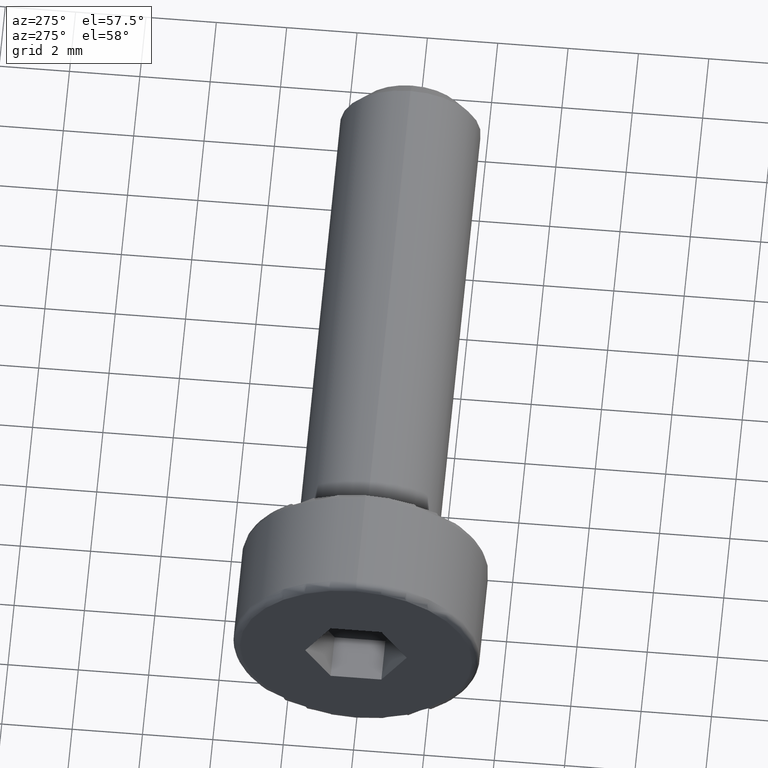
[diagram: clean part render]
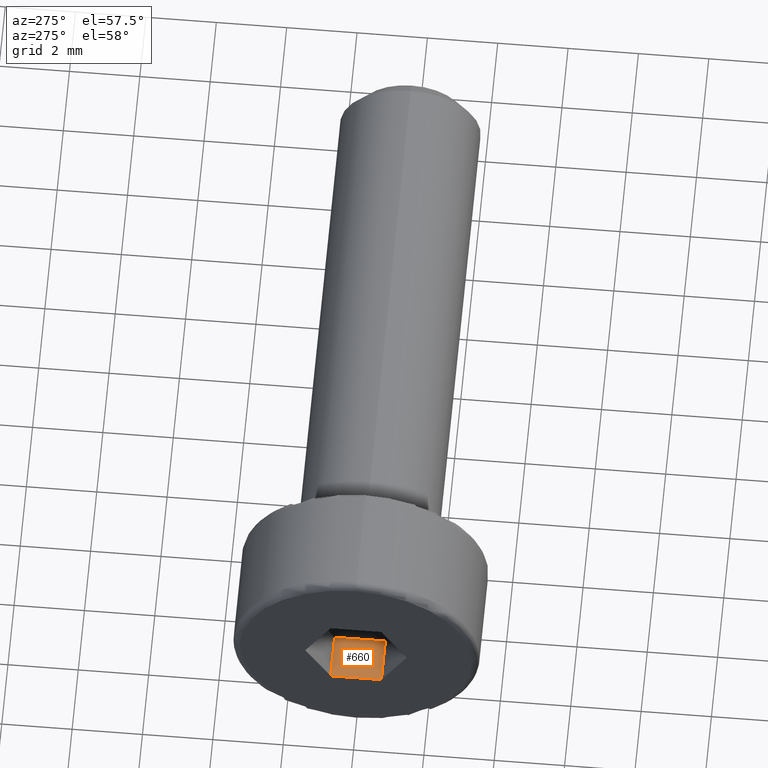
[diagram: same view with one face highlighted and labeled with its STEP entity id]
A machine part, auxiliary view. The second image highlights one B-rep face of the part: STEP entity #660.
In plain terms, the highlighted planar face has unit normal (0, -0, -1).
Its self-contained STEP definition (entity closure, byte-faithful):
#15 = EDGE_LOOP ( 'NONE', ( #218, #257, #430, #52 ) ) ;
#47 = CARTESIAN_POINT ( 'NONE',  ( -1.900000000000000100, -0.7216878364870932300, -1.250000000000020900 ) ) ;
#52 = ORIENTED_EDGE ( 'NONE', *, *, #684, .T. ) ;
#158 = LINE ( 'NONE', #47, #631 ) ;
#194 = LINE ( 'NONE', #270, #504 ) ;
#205 = AXIS2_PLACEMENT_3D ( 'NONE', #465, #215, #655 ) ;
#210 = CARTESIAN_POINT ( 'NONE',  ( -1.900000000000000100, -0.7216878364870932300, -1.250000000000020900 ) ) ;
#215 = DIRECTION ( 'NONE',  ( 0.0000000000000000000, -9.013887592422725400E-016, -1.000000000000000000 ) ) ;
#217 = VERTEX_POINT ( 'NONE', #591 ) ;
#218 = ORIENTED_EDGE ( 'NONE', *, *, #806, .T. ) ;
#236 = DIRECTION ( 'NONE',  ( -0.0000000000000000000, -1.000000000000000000, 9.013887592422725400E-016 ) ) ;
#257 = ORIENTED_EDGE ( 'NONE', *, *, #491, .F. ) ;
#270 = CARTESIAN_POINT ( 'NONE',  ( -1.900000000000000100, 0.7216878364870081800, -1.250000000000022200 ) ) ;
#279 = PLANE ( 'NONE',  #205 ) ;
#371 = LINE ( 'NONE', #681, #710 ) ;
#374 = EDGE_CURVE ( 'NONE', #438, #811, #158, .T. ) ;
#430 = ORIENTED_EDGE ( 'NONE', *, *, #374, .F. ) ;
#438 = VERTEX_POINT ( 'NONE', #725 ) ;
#465 = CARTESIAN_POINT ( 'NONE',  ( -1.900000000000000100, -0.7216878364870932300, -1.250000000000020900 ) ) ;
#491 = EDGE_CURVE ( 'NONE', #811, #217, #587, .T. ) ;
#503 = VERTEX_POINT ( 'NONE', #778 ) ;
#504 = VECTOR ( 'NONE', #774, 1000.000000000000000 ) ;
#508 = DIRECTION ( 'NONE',  ( -1.000000000000000000, -0.0000000000000000000, -0.0000000000000000000 ) ) ;
#572 = VECTOR ( 'NONE', #508, 1000.000000000000000 ) ;
#587 = LINE ( 'NONE', #210, #572 ) ;
#591 = CARTESIAN_POINT ( 'NONE',  ( -3.200000000000000200, -0.7216878364870931200, -1.250000000000020700 ) ) ;
#631 = VECTOR ( 'NONE', #720, 1000.000000000000000 ) ;
#655 = DIRECTION ( 'NONE',  ( 0.0000000000000000000, 1.000000000000000000, -9.013887592422725400E-016 ) ) ;
#660 = ADVANCED_FACE ( 'NONE', ( #702 ), #279, .F. ) ;
#681 = CARTESIAN_POINT ( 'NONE',  ( -3.200000000000000200, -0.7216878364870932300, -1.250000000000020900 ) ) ;
#684 = EDGE_CURVE ( 'NONE', #438, #503, #194, .T. ) ;
#702 = FACE_OUTER_BOUND ( 'NONE', #15, .T. ) ;
#710 = VECTOR ( 'NONE', #236, 1000.000000000000000 ) ;
#720 = DIRECTION ( 'NONE',  ( -0.0000000000000000000, -1.000000000000000000, 9.013887592422725400E-016 ) ) ;
#725 = CARTESIAN_POINT ( 'NONE',  ( -1.900000000000000100, 0.7216878364870081800, -1.250000000000022200 ) ) ;
#741 = CARTESIAN_POINT ( 'NONE',  ( -1.900000000000000100, -0.7216878364870932300, -1.250000000000020900 ) ) ;
#774 = DIRECTION ( 'NONE',  ( -1.000000000000000000, -0.0000000000000000000, -0.0000000000000000000 ) ) ;
#778 = CARTESIAN_POINT ( 'NONE',  ( -3.200000000000000200, 0.7216878364870081800, -1.250000000000022200 ) ) ;
#806 = EDGE_CURVE ( 'NONE', #503, #217, #371, .T. ) ;
#811 = VERTEX_POINT ( 'NONE', #741 ) ;